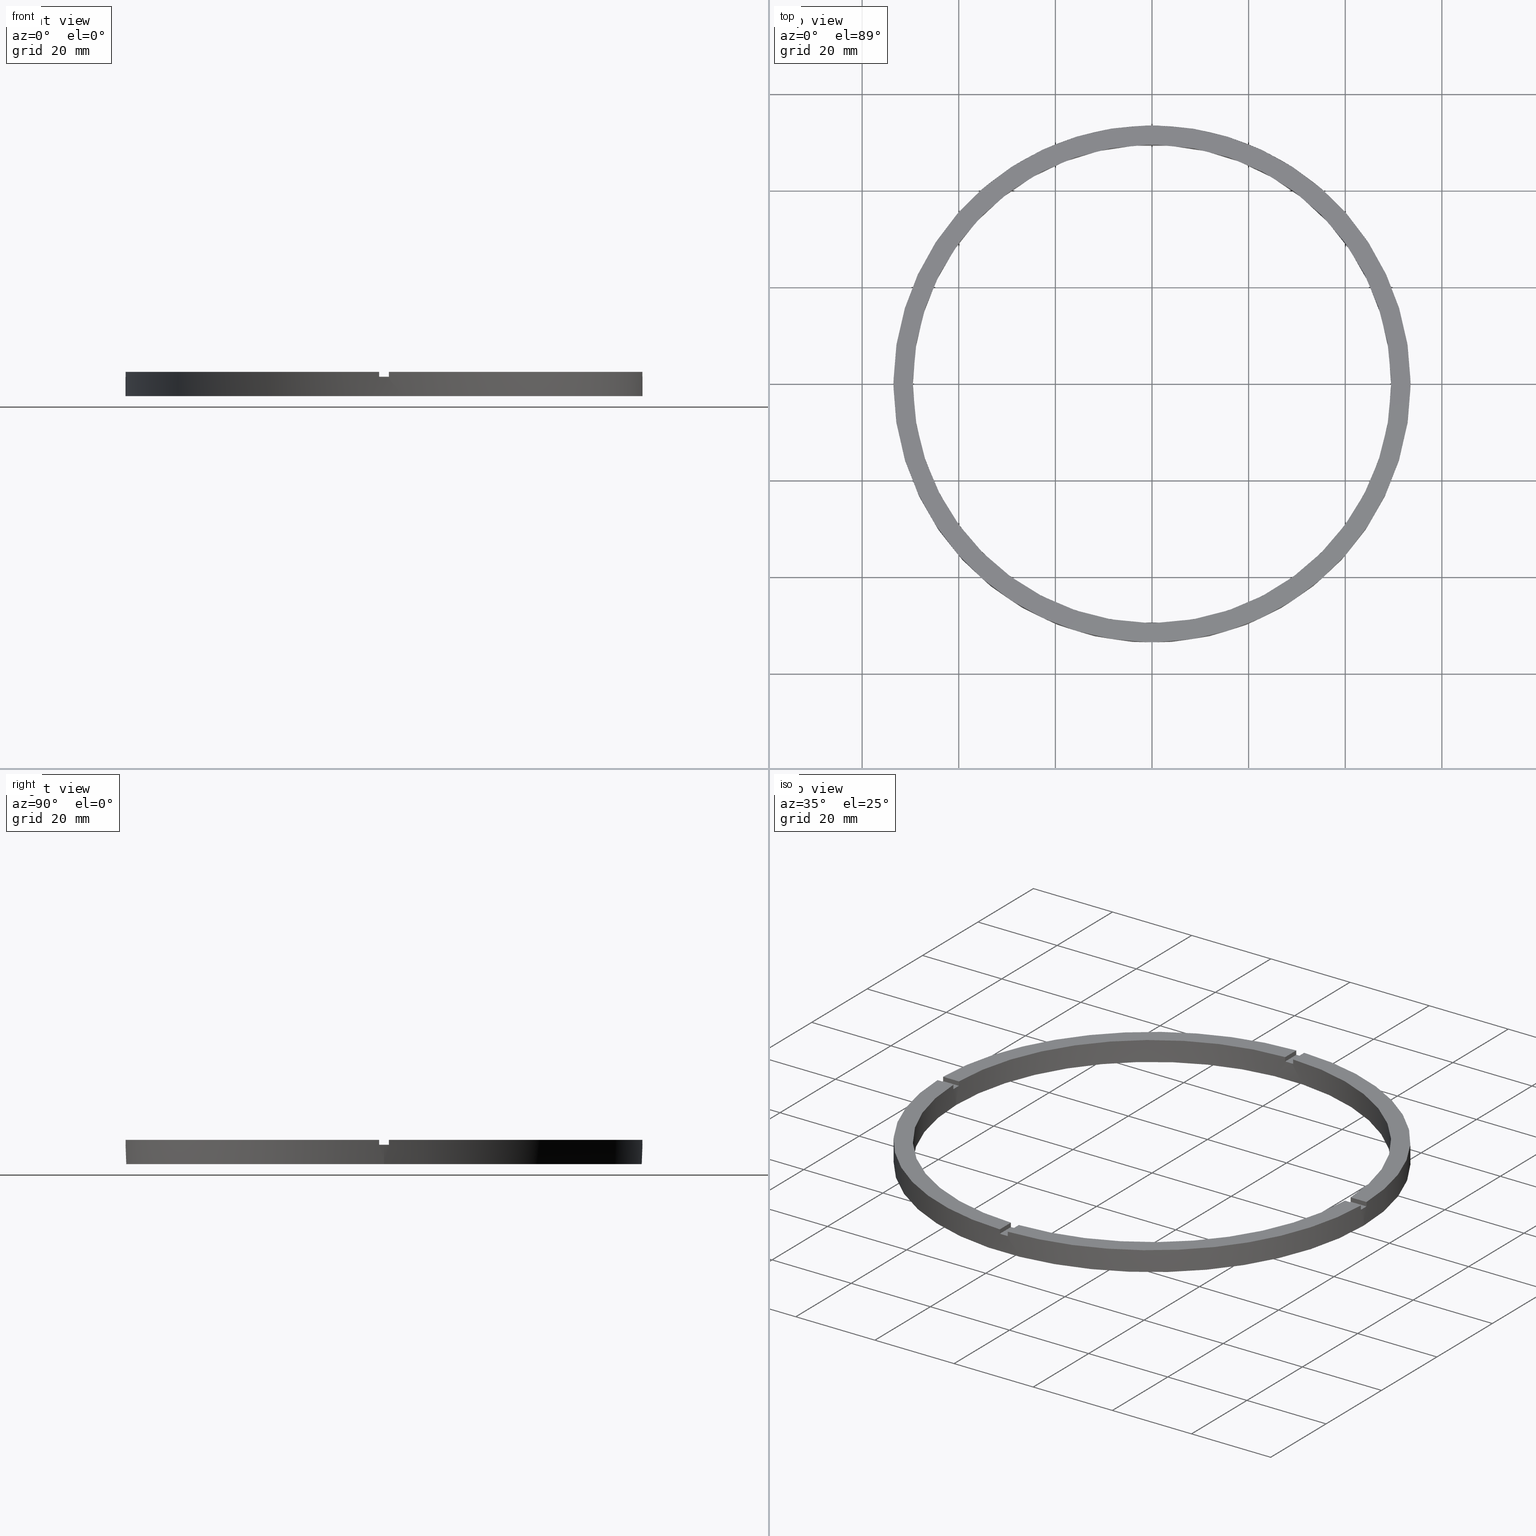
[diagram: canonical four-view strip — front | top / right | iso, engineering-drawing reading convention]
A machine part, canonical four-view strip (front | top / right | iso — engineering-drawing reading convention). The complete STEP part file that produces these views, byte-faithful:
ISO-10303-21;
HEADER;
FILE_DESCRIPTION (( 'STEP AP203' ),
    '1' );
FILE_NAME ('514219.step',
    '2024-12-26T02:49:17',
    ( 'MSI' ),
    ( '' ),
    'SwSTEP 2.0',
    'SolidWorks 2020',
    '' );
FILE_SCHEMA (( 'CONFIG_CONTROL_DESIGN' ));
ENDSEC;

DATA;
#1 = CARTESIAN_POINT ( 'NONE',  ( 0.000000000000000000, 0.000000000000000000, 4.000000000000000000 ) ) ;
#2 = CARTESIAN_POINT ( 'NONE',  ( 0.000000000000000000, 0.000000000000000000, 5.000000000000000000 ) ) ;
#3 = DIRECTION ( 'NONE',  ( 1.000000000000000000, 0.000000000000000000, -0.000000000000000000 ) ) ;
#4 = DATE_TIME_ROLE ( 'classification_date' ) ;
#5 = CARTESIAN_POINT ( 'NONE',  ( 0.000000000000000000, 0.000000000000000000, 4.000000000000000000 ) ) ;
#6 = EDGE_CURVE ( 'NONE', #144, #432, #218, .T. ) ;
#7 = DIRECTION ( 'NONE',  ( -1.000000000000000000, 0.000000000000000000, 0.000000000000000000 ) ) ;
#8 = ADVANCED_FACE ( 'NONE', ( #739 ), #473, .T. ) ;
#9 = DIRECTION ( 'NONE',  ( -6.505213034913025371E-17, 1.000000000000000000, 0.000000000000000000 ) ) ;
#10 = DIRECTION ( 'NONE',  ( 1.000000000000000000, 0.000000000000000000, 0.000000000000000000 ) ) ;
#11 = EDGE_CURVE ( 'NONE', #717, #719, #480, .T. ) ;
#12 = AXIS2_PLACEMENT_3D ( 'NONE', #607, #29, #527 ) ;
#13 = MANIFOLD_SOLID_BREP ( '�г�-����1', #207 ) ;
#14 = DIRECTION ( 'NONE',  ( -0.000000000000000000, -0.000000000000000000, -1.000000000000000000 ) ) ;
#15 = CARTESIAN_POINT ( 'NONE',  ( -49.48989795907849043, 0.9999999999999681366, 5.000000000000000000 ) ) ;
#16 = EDGE_CURVE ( 'NONE', #222, #717, #733, .T. ) ;
#17 = CARTESIAN_POINT ( 'NONE',  ( -1.000000000000157208, -43.50000000000017764, 5.000000000000000000 ) ) ;
#18 = AXIS2_PLACEMENT_3D ( 'NONE', #1, #622, #81 ) ;
#19 = DIRECTION ( 'NONE',  ( 1.000000000000000000, 0.000000000000000000, -0.000000000000000000 ) ) ;
#20 = CARTESIAN_POINT ( 'NONE',  ( 0.000000000000000000, 0.000000000000000000, 4.000000000000000000 ) ) ;
#21 = EDGE_CURVE ( 'NONE', #445, #433, #216, .T. ) ;
#22 = CARTESIAN_POINT ( 'NONE',  ( -53.49065338916696533, -1.000000000000032641, 5.000000000000000000 ) ) ;
#23 = PERSON_AND_ORGANIZATION_ROLE ( 'creator' ) ;
#24 = DIRECTION ( 'NONE',  ( -1.000000000000000000, 0.000000000000000000, 0.000000000000000000 ) ) ;
#25 = AXIS2_PLACEMENT_3D ( 'NONE', #409, #330, #277 ) ;
#26 = CARTESIAN_POINT ( 'NONE',  ( 0.9999999999999726885, 49.48989795907849043, 4.000000000000000000 ) ) ;
#27 = DIRECTION ( 'NONE',  ( 0.000000000000000000, 0.000000000000000000, 1.000000000000000000 ) ) ;
#28 = EDGE_CURVE ( 'NONE', #717, #433, #742, .T. ) ;
#29 = DIRECTION ( 'NONE',  ( 0.000000000000000000, 0.000000000000000000, 1.000000000000000000 ) ) ;
#30 = LINE ( 'NONE', #563, #41 ) ;
#31 = CIRCLE ( 'NONE', #758, 53.50000000000000000 ) ;
#32 = PERSON_AND_ORGANIZATION ( #479, #288 ) ;
#33 = EDGE_CURVE ( 'NONE', #704, #215, #486, .T. ) ;
#34 = VECTOR ( 'NONE', #514, 1000.000000000000000 ) ;
#35 = APPROVAL_PERSON_ORGANIZATION ( #42, #684, #214 ) ;
#36 = DIRECTION ( 'NONE',  ( 0.000000000000000000, 0.000000000000000000, 1.000000000000000000 ) ) ;
#37 = DIRECTION ( 'NONE',  ( 0.000000000000000000, 0.000000000000000000, 1.000000000000000000 ) ) ;
#38 = ADVANCED_FACE ( 'NONE', ( #564 ), #139, .T. ) ;
#39 = CC_DESIGN_APPROVAL ( #443, ( #769 ) ) ;
#40 = CARTESIAN_POINT ( 'NONE',  ( 0.9999999999999726885, 49.48989795907849043, 5.000000000000000000 ) ) ;
#41 = VECTOR ( 'NONE', #606, 1000.000000000000000 ) ;
#42 = PERSON_AND_ORGANIZATION ( #479, #288 ) ;
#43 = CARTESIAN_POINT ( 'NONE',  ( 0.9999999999999726885, 53.49065338916696533, 5.000000000000000000 ) ) ;
#44 = CALENDAR_DATE ( 2024, 26, 12 ) ;
#45 = PLANE ( 'NONE',  #355 ) ;
#46 = LINE ( 'NONE', #116, #34 ) ;
#47 = EDGE_CURVE ( 'NONE', #689, #229, #46, .T. ) ;
#48 = DIRECTION ( 'NONE',  ( 0.000000000000000000, 0.000000000000000000, 1.000000000000000000 ) ) ;
#49 = LINE ( 'NONE', #17, #302 ) ;
#50 = AXIS2_PLACEMENT_3D ( 'NONE', #746, #48, #282 ) ;
#51 = CARTESIAN_POINT ( 'NONE',  ( 0.9999999999999726885, 43.50000000000000000, 5.000000000000000000 ) ) ;
#52 = CARTESIAN_POINT ( 'NONE',  ( 43.49999999999999289, 0.9999999999998447908, 4.000000000000000000 ) ) ;
#53 = LINE ( 'NONE', #446, #569 ) ;
#54 = PLANE ( 'NONE',  #703 ) ;
#55 = FACE_OUTER_BOUND ( 'NONE', #725, .T. ) ;
#56 = EDGE_CURVE ( 'NONE', #445, #704, #573, .T. ) ;
#57 = CIRCLE ( 'NONE', #98, 53.50000000000000000 ) ;
#58 = EDGE_CURVE ( 'NONE', #689, #492, #31, .T. ) ;
#59 = CARTESIAN_POINT ( 'NONE',  ( 0.000000000000000000, 0.000000000000000000, 5.000000000000000000 ) ) ;
#60 = CARTESIAN_POINT ( 'NONE',  ( 0.000000000000000000, 0.000000000000000000, 4.000000000000000000 ) ) ;
#61 = VECTOR ( 'NONE', #246, 1000.000000000000000 ) ;
#62 = CC_DESIGN_SECURITY_CLASSIFICATION ( #110, ( #769 ) ) ;
#63 = DIRECTION ( 'NONE',  ( -0.000000000000000000, -1.000000000000000000, -0.000000000000000000 ) ) ;
#64 = EDGE_CURVE ( 'NONE', #687, #200, #30, .T. ) ;
#65 = APPROVAL ( #295, 'δָ��' ) ;
#66 = FACE_OUTER_BOUND ( 'NONE', #185, .T. ) ;
#67 = ADVANCED_FACE ( 'NONE', ( #554 ), #483, .F. ) ;
#68 = CYLINDRICAL_SURFACE ( 'NONE', #701, 49.50000000000000711 ) ;
#69 = DIRECTION ( 'NONE',  ( 1.000000000000000000, 6.505213034913025371E-17, 0.000000000000000000 ) ) ;
#70 = CIRCLE ( 'NONE', #267, 53.50000000000000000 ) ;
#71 = CARTESIAN_POINT ( 'NONE',  ( 0.000000000000000000, 0.000000000000000000, 5.000000000000000000 ) ) ;
#72 = EDGE_CURVE ( 'NONE', #200, #168, #571, .T. ) ;
#73 = AXIS2_PLACEMENT_3D ( 'NONE', #617, #611, #84 ) ;
#74 = CC_DESIGN_PERSON_AND_ORGANIZATION_ASSIGNMENT ( #465, #636, ( #769 ) ) ;
#75 = LINE ( 'NONE', #86, #76 ) ;
#76 = VECTOR ( 'NONE', #272, 1000.000000000000000 ) ;
#77 = EDGE_CURVE ( 'NONE', #433, #215, #49, .T. ) ;
#78 = DIRECTION ( 'NONE',  ( -0.000000000000000000, -0.000000000000000000, -1.000000000000000000 ) ) ;
#79 = EDGE_CURVE ( 'NONE', #472, #189, #306, .T. ) ;
#80 = AXIS2_PLACEMENT_3D ( 'NONE', #341, #714, #147 ) ;
#81 = DIRECTION ( 'NONE',  ( 1.000000000000000000, 0.000000000000000000, -0.000000000000000000 ) ) ;
#82 = EDGE_CURVE ( 'NONE', #638, #692, #561, .T. ) ;
#83 = EDGE_CURVE ( 'NONE', #432, #614, #292, .T. ) ;
#84 = DIRECTION ( 'NONE',  ( 1.000000000000000000, 0.000000000000000000, 0.000000000000000000 ) ) ;
#85 = CC_DESIGN_APPROVAL ( #65, ( #110 ) ) ;
#86 = CARTESIAN_POINT ( 'NONE',  ( 43.49999999999999289, -1.000000000000155209, 5.000000000000000000 ) ) ;
#87 = CARTESIAN_POINT ( 'NONE',  ( 53.50000000000000000, 6.551860375438339893E-15, 0.000000000000000000 ) ) ;
#88 = EDGE_LOOP ( 'NONE', ( #456, #424, #451, #426, #702, #615, #163, #626, #709, #210, #103, #705 ) ) ;
#89 = DIRECTION ( 'NONE',  ( 1.000000000000000000, 0.000000000000000000, 0.000000000000000000 ) ) ;
#90 = DIRECTION ( 'NONE',  ( 0.000000000000000000, 0.000000000000000000, 1.000000000000000000 ) ) ;
#91 = ORIENTED_EDGE ( 'NONE', *, *, #79, .T. ) ;
#92 = ORIENTED_EDGE ( 'NONE', *, *, #532, .F. ) ;
#93 = ORIENTED_EDGE ( 'NONE', *, *, #237, .T. ) ;
#94 = CARTESIAN_POINT ( 'NONE',  ( 0.9999999999999726885, 53.49065338916696533, 5.000000000000000000 ) ) ;
#95 = EDGE_CURVE ( 'NONE', #438, #100, #293, .T. ) ;
#96 = ORIENTED_EDGE ( 'NONE', *, *, #340, .T. ) ;
#97 = DESIGN_CONTEXT ( 'detailed design', #619, 'design' ) ;
#98 = AXIS2_PLACEMENT_3D ( 'NONE', #431, #653, #258 ) ;
#99 = ORIENTED_EDGE ( 'NONE', *, *, #353, .T. ) ;
#100 = VERTEX_POINT ( 'NONE', #123 ) ;
#101 = DIRECTION ( 'NONE',  ( 0.000000000000000000, 0.000000000000000000, 1.000000000000000000 ) ) ;
#102 = EDGE_CURVE ( 'NONE', #699, #442, #296, .T. ) ;
#103 = ORIENTED_EDGE ( 'NONE', *, *, #593, .T. ) ;
#104 = ORIENTED_EDGE ( 'NONE', *, *, #695, .F. ) ;
#105 = FACE_OUTER_BOUND ( 'NONE', #191, .T. ) ;
#106 = ORIENTED_EDGE ( 'NONE', *, *, #525, .F. ) ;
#107 = DIRECTION ( 'NONE',  ( -0.000000000000000000, 0.000000000000000000, 1.000000000000000000 ) ) ;
#108 = VECTOR ( 'NONE', #643, 1000.000000000000000 ) ;
#109 = EDGE_LOOP ( 'NONE', ( #187, #106, #751, #150 ) ) ;
#110 = SECURITY_CLASSIFICATION ( '', '', #766 ) ;
#111 = LINE ( 'NONE', #252, #382 ) ;
#112 = ORIENTED_EDGE ( 'NONE', *, *, #659, .F. ) ;
#113 = AXIS2_PLACEMENT_3D ( 'NONE', #513, #660, #510 ) ;
#114 = LINE ( 'NONE', #434, #124 ) ;
#115 = CIRCLE ( 'NONE', #334, 49.50000000000000711 ) ;
#116 = CARTESIAN_POINT ( 'NONE',  ( 53.49065338916697243, 0.9999999999998454570, 5.000000000000000000 ) ) ;
#117 = VECTOR ( 'NONE', #180, 1000.000000000000000 ) ;
#118 = AXIS2_PLACEMENT_3D ( 'NONE', #519, #265, #374 ) ;
#119 = CIRCLE ( 'NONE', #538, 49.50000000000000711 ) ;
#120 = EDGE_CURVE ( 'NONE', #189, #200, #567, .T. ) ;
#121 = CIRCLE ( 'NONE', #511, 53.50000000000000000 ) ;
#122 = LINE ( 'NONE', #731, #396 ) ;
#123 = CARTESIAN_POINT ( 'NONE',  ( 0.9999999999998441247, -53.49065338916697243, 4.000000000000000000 ) ) ;
#124 = VECTOR ( 'NONE', #14, 1000.000000000000000 ) ;
#125 = CARTESIAN_POINT ( 'NONE',  ( -43.50000000000018474, 0.9999999999999694689, 4.000000000000000000 ) ) ;
#126 = FACE_OUTER_BOUND ( 'NONE', #641, .T. ) ;
#127 = FACE_OUTER_BOUND ( 'NONE', #743, .T. ) ;
#128 = FACE_BOUND ( 'NONE', #361, .T. ) ;
#129 = DATE_TIME_ROLE ( 'creation_date' ) ;
#130 = FACE_OUTER_BOUND ( 'NONE', #172, .T. ) ;
#131 = EDGE_CURVE ( 'NONE', #189, #692, #53, .T. ) ;
#132 = VECTOR ( 'NONE', #233, 1000.000000000000000 ) ;
#133 = CYLINDRICAL_SURFACE ( 'NONE', #268, 49.50000000000000711 ) ;
#134 = CARTESIAN_POINT ( 'NONE',  ( 49.48989795907849043, -1.000000000000154765, 5.000000000000000000 ) ) ;
#135 = DIRECTION ( 'NONE',  ( 1.000000000000000000, 0.000000000000000000, 0.000000000000000000 ) ) ;
#136 = CARTESIAN_POINT ( 'NONE',  ( 43.49999999999999289, 0.9999999999998447908, 5.000000000000000000 ) ) ;
#137 = PRODUCT_DEFINITION ( 'δ֪', '', #769, #97 ) ;
#138 = VECTOR ( 'NONE', #429, 1000.000000000000000 ) ;
#139 = PLANE ( 'NONE',  #761 ) ;
#140 = VECTOR ( 'NONE', #663, 1000.000000000000000 ) ;
#141 = EDGE_CURVE ( 'NONE', #704, #100, #305, .T. ) ;
#142 = AXIS2_PLACEMENT_3D ( 'NONE', #407, #9, #326 ) ;
#143 =( GEOMETRIC_REPRESENTATION_CONTEXT ( 3 ) GLOBAL_UNCERTAINTY_ASSIGNED_CONTEXT ( ( #548 ) ) GLOBAL_UNIT_ASSIGNED_CONTEXT ( ( #312, #366, #560 ) ) REPRESENTATION_CONTEXT ( 'NONE', 'WORKASPACE' ) );
#144 = VERTEX_POINT ( 'NONE', #261 ) ;
#145 = LINE ( 'NONE', #43, #138 ) ;
#146 = ORIENTED_EDGE ( 'NONE', *, *, #558, .F. ) ;
#147 = DIRECTION ( 'NONE',  ( 1.000000000000000000, 0.000000000000000000, 0.000000000000000000 ) ) ;
#148 = CIRCLE ( 'NONE', #406, 49.50000000000000711 ) ;
#149 = DIRECTION ( 'NONE',  ( 0.000000000000000000, 0.000000000000000000, 1.000000000000000000 ) ) ;
#150 = ORIENTED_EDGE ( 'NONE', *, *, #364, .T. ) ;
#151 = ORIENTED_EDGE ( 'NONE', *, *, #141, .T. ) ;
#152 = ORIENTED_EDGE ( 'NONE', *, *, #33, .F. ) ;
#153 = CARTESIAN_POINT ( 'NONE',  ( 49.48989795907849043, 0.9999999999998452349, 4.000000000000000000 ) ) ;
#154 = ORIENTED_EDGE ( 'NONE', *, *, #16, .F. ) ;
#155 = ORIENTED_EDGE ( 'NONE', *, *, #16, .T. ) ;
#156 = ORIENTED_EDGE ( 'NONE', *, *, #612, .T. ) ;
#157 = ORIENTED_EDGE ( 'NONE', *, *, #515, .F. ) ;
#158 = CARTESIAN_POINT ( 'NONE',  ( 0.9999999999998427924, -43.50000000000017764, 4.000000000000000000 ) ) ;
#159 = ORIENTED_EDGE ( 'NONE', *, *, #64, .T. ) ;
#160 = ORIENTED_EDGE ( 'NONE', *, *, #327, .F. ) ;
#161 = CC_DESIGN_DATE_AND_TIME_ASSIGNMENT ( #440, #4, ( #110 ) ) ;
#162 = DIRECTION ( 'NONE',  ( 0.000000000000000000, -0.000000000000000000, 1.000000000000000000 ) ) ;
#163 = ORIENTED_EDGE ( 'NONE', *, *, #131, .F. ) ;
#164 = ORIENTED_EDGE ( 'NONE', *, *, #79, .F. ) ;
#165 = ORIENTED_EDGE ( 'NONE', *, *, #33, .T. ) ;
#166 = ORIENTED_EDGE ( 'NONE', *, *, #242, .F. ) ;
#167 = ORIENTED_EDGE ( 'NONE', *, *, #593, .F. ) ;
#168 = VERTEX_POINT ( 'NONE', #365 ) ;
#169 = DIRECTION ( 'NONE',  ( -0.000000000000000000, 0.000000000000000000, 1.000000000000000000 ) ) ;
#170 = ORIENTED_EDGE ( 'NONE', *, *, #350, .F. ) ;
#171 = DIRECTION ( 'NONE',  ( -1.301042606982605074E-16, 1.000000000000000000, -0.000000000000000000 ) ) ;
#172 = EDGE_LOOP ( 'NONE', ( #729, #444, #352, #112 ) ) ;
#173 = EDGE_CURVE ( 'NONE', #687, #457, #570, .T. ) ;
#174 = CALENDAR_DATE ( 2024, 26, 12 ) ;
#175 = CARTESIAN_POINT ( 'NONE',  ( 0.000000000000000000, 0.000000000000000000, 0.000000000000000000 ) ) ;
#176 = EDGE_LOOP ( 'NONE', ( #416, #159, #718, #460 ) ) ;
#177 = EDGE_LOOP ( 'NONE', ( #151, #485, #723, #441 ) ) ;
#178 = VERTEX_POINT ( 'NONE', #698 ) ;
#179 = CALENDAR_DATE ( 2024, 26, 12 ) ;
#180 = DIRECTION ( 'NONE',  ( 0.000000000000000000, 0.000000000000000000, 1.000000000000000000 ) ) ;
#181 = ORIENTED_EDGE ( 'NONE', *, *, #77, .T. ) ;
#182 = ORIENTED_EDGE ( 'NONE', *, *, #237, .F. ) ;
#183 = EDGE_LOOP ( 'NONE', ( #164, #697, #610, #671 ) ) ;
#184 = CARTESIAN_POINT ( 'NONE',  ( 0.9999999999998436806, -49.48989795907849043, 5.000000000000000000 ) ) ;
#185 = EDGE_LOOP ( 'NONE', ( #157, #196, #422, #678, #679, #419, #165, #166, #481, #182, #363, #740 ) ) ;
#186 = DIRECTION ( 'NONE',  ( -1.000000000000000000, -6.505213034913025371E-17, -0.000000000000000000 ) ) ;
#187 = ORIENTED_EDGE ( 'NONE', *, *, #317, .F. ) ;
#188 = PRODUCT_RELATED_PRODUCT_CATEGORY ( 'detail', '', ( #768 ) ) ;
#189 = VERTEX_POINT ( 'NONE', #459 ) ;
#190 = ORIENTED_EDGE ( 'NONE', *, *, #102, .T. ) ;
#191 = EDGE_LOOP ( 'NONE', ( #190, #93, #377, #462, #716, #356 ) ) ;
#192 = EDGE_LOOP ( 'NONE', ( #634, #700, #346, #96 ) ) ;
#193 = LOCAL_TIME ( 10, 49, 17.00000000000000000, #494 ) ;
#194 = ORIENTED_EDGE ( 'NONE', *, *, #250, .T. ) ;
#195 = ORIENTED_EDGE ( 'NONE', *, *, #21, .F. ) ;
#196 = ORIENTED_EDGE ( 'NONE', *, *, #411, .F. ) ;
#197 = DIRECTION ( 'NONE',  ( 1.000000000000000000, 0.000000000000000000, 0.000000000000000000 ) ) ;
#198 = ORIENTED_EDGE ( 'NONE', *, *, #754, .F. ) ;
#199 = LOCAL_TIME ( 10, 49, 17.00000000000000000, #463 ) ;
#200 = VERTEX_POINT ( 'NONE', #15 ) ;
#201 = ORIENTED_EDGE ( 'NONE', *, *, #411, .T. ) ;
#202 = DATE_AND_TIME ( #724, #193 ) ;
#203 = ORIENTED_EDGE ( 'NONE', *, *, #710, .F. ) ;
#204 = ORIENTED_EDGE ( 'NONE', *, *, #58, .T. ) ;
#205 = COORDINATED_UNIVERSAL_TIME_OFFSET ( 8, 0, .AHEAD. ) ;
#206 = ORIENTED_EDGE ( 'NONE', *, *, #102, .F. ) ;
#207 = CLOSED_SHELL ( 'NONE', ( #618, #8, #38, #625, #779, #227, #501, #260, #269, #430, #535, #418, #343, #584, #398, #247, #67, #289, #657, #772, #491 ) ) ;
#208 = ORIENTED_EDGE ( 'NONE', *, *, #83, .T. ) ;
#209 = CARTESIAN_POINT ( 'NONE',  ( 53.49065338916697243, 0.9999999999998454570, 4.000000000000000000 ) ) ;
#210 = ORIENTED_EDGE ( 'NONE', *, *, #173, .T. ) ;
#211 = CARTESIAN_POINT ( 'NONE',  ( -1.000000000000157208, -43.50000000000017764, 4.000000000000000000 ) ) ;
#212 = ORIENTED_EDGE ( 'NONE', *, *, #317, .T. ) ;
#213 = CARTESIAN_POINT ( 'NONE',  ( -1.000000000000027311, 43.50000000000000000, 4.000000000000000000 ) ) ;
#214 = APPROVAL_ROLE ( '' ) ;
#215 = VERTEX_POINT ( 'NONE', #555 ) ;
#216 = LINE ( 'NONE', #262, #484 ) ;
#217 = VERTEX_POINT ( 'NONE', #667 ) ;
#218 = CIRCLE ( 'NONE', #304, 49.50000000000000711 ) ;
#219 = DIRECTION ( 'NONE',  ( 0.000000000000000000, 0.000000000000000000, 1.000000000000000000 ) ) ;
#220 = EDGE_LOOP ( 'NONE', ( #194, #435, #198, #455 ) ) ;
#221 = DATE_AND_TIME ( #44, #566 ) ;
#222 = VERTEX_POINT ( 'NONE', #22 ) ;
#223 = APPROVAL_DATE_TIME ( #202, #443 ) ;
#224 = CARTESIAN_POINT ( 'NONE',  ( 0.9999999999998441247, -53.49065338916697243, 5.000000000000000000 ) ) ;
#225 = DIRECTION ( 'NONE',  ( 0.000000000000000000, 0.000000000000000000, -1.000000000000000000 ) ) ;
#226 = LOCAL_TIME ( 10, 49, 17.00000000000000000, #230 ) ;
#227 = ADVANCED_FACE ( 'NONE', ( #55 ), #372, .T. ) ;
#228 = CARTESIAN_POINT ( 'NONE',  ( -49.48989795907849043, -1.000000000000031974, 5.000000000000000000 ) ) ;
#229 = VERTEX_POINT ( 'NONE', #209 ) ;
#230 = COORDINATED_UNIVERSAL_TIME_OFFSET ( 8, 0, .AHEAD. ) ;
#231 = AXIS2_PLACEMENT_3D ( 'NONE', #175, #591, #3 ) ;
#232 = SHAPE_DEFINITION_REPRESENTATION ( #328, #536 ) ;
#233 = DIRECTION ( 'NONE',  ( -1.000000000000000000, -1.951563910473907735E-16, 0.000000000000000000 ) ) ;
#234 = CARTESIAN_POINT ( 'NONE',  ( 0.9999999999998436806, -49.48989795907849043, 5.000000000000000000 ) ) ;
#235 = DIRECTION ( 'NONE',  ( -0.000000000000000000, -0.000000000000000000, -1.000000000000000000 ) ) ;
#236 = AXIS2_PLACEMENT_3D ( 'NONE', #371, #502, #777 ) ;
#237 = EDGE_CURVE ( 'NONE', #442, #688, #57, .T. ) ;
#238 = DIRECTION ( 'NONE',  ( 1.000000000000000000, 0.000000000000000000, -0.000000000000000000 ) ) ;
#239 = DIRECTION ( 'NONE',  ( 1.000000000000000000, 0.000000000000000000, 0.000000000000000000 ) ) ;
#240 = CARTESIAN_POINT ( 'NONE',  ( 0.000000000000000000, 0.000000000000000000, 5.000000000000000000 ) ) ;
#241 = DIRECTION ( 'NONE',  ( 0.000000000000000000, 1.000000000000000000, 0.000000000000000000 ) ) ;
#242 = EDGE_CURVE ( 'NONE', #222, #215, #310, .T. ) ;
#243 = DIRECTION ( 'NONE',  ( 1.000000000000000000, 0.000000000000000000, 0.000000000000000000 ) ) ;
#244 = CARTESIAN_POINT ( 'NONE',  ( 0.000000000000000000, 0.000000000000000000, 4.000000000000000000 ) ) ;
#245 = DIRECTION ( 'NONE',  ( -1.000000000000000000, 0.000000000000000000, 0.000000000000000000 ) ) ;
#246 = DIRECTION ( 'NONE',  ( 1.000000000000000000, 6.505213034913025371E-17, 0.000000000000000000 ) ) ;
#247 = ADVANCED_FACE ( 'NONE', ( #574 ), #338, .F. ) ;
#248 = EDGE_CURVE ( 'NONE', #683, #370, #553, .T. ) ;
#249 = CARTESIAN_POINT ( 'NONE',  ( -53.49065338916696533, -1.000000000000032641, 4.000000000000000000 ) ) ;
#250 = EDGE_CURVE ( 'NONE', #438, #735, #592, .T. ) ;
#251 = DIRECTION ( 'NONE',  ( -1.000000000000000000, 0.000000000000000000, 0.000000000000000000 ) ) ;
#252 = CARTESIAN_POINT ( 'NONE',  ( 53.50000000000000000, 6.551860375438339893E-15, 5.000000000000000000 ) ) ;
#253 = DIRECTION ( 'NONE',  ( 0.000000000000000000, 0.000000000000000000, 1.000000000000000000 ) ) ;
#254 = DIRECTION ( 'NONE',  ( -0.000000000000000000, -0.000000000000000000, -1.000000000000000000 ) ) ;
#255 = EDGE_CURVE ( 'NONE', #178, #487, #70, .T. ) ;
#256 = CARTESIAN_POINT ( 'NONE',  ( 0.000000000000000000, 0.000000000000000000, 5.000000000000000000 ) ) ;
#257 = PLANE ( 'NONE',  #760 ) ;
#258 = DIRECTION ( 'NONE',  ( 1.000000000000000000, 0.000000000000000000, 0.000000000000000000 ) ) ;
#259 = DIRECTION ( 'NONE',  ( 1.000000000000000000, 0.000000000000000000, 0.000000000000000000 ) ) ;
#260 = ADVANCED_FACE ( 'NONE', ( #66 ), #329, .T. ) ;
#261 = CARTESIAN_POINT ( 'NONE',  ( 49.48989795907849043, -1.000000000000154765, 4.000000000000000000 ) ) ;
#262 = CARTESIAN_POINT ( 'NONE',  ( -1.000000000000156319, -49.48989795907849043, 5.000000000000000000 ) ) ;
#263 = DIRECTION ( 'NONE',  ( -0.000000000000000000, -0.000000000000000000, -1.000000000000000000 ) ) ;
#264 = DIRECTION ( 'NONE',  ( 1.301042606982605074E-16, -1.000000000000000000, 0.000000000000000000 ) ) ;
#265 = DIRECTION ( 'NONE',  ( 0.000000000000000000, 0.000000000000000000, 1.000000000000000000 ) ) ;
#266 = PLANE ( 'NONE',  #18 ) ;
#267 = AXIS2_PLACEMENT_3D ( 'NONE', #594, #37, #197 ) ;
#268 = AXIS2_PLACEMENT_3D ( 'NONE', #333, #738, #533 ) ;
#269 = ADVANCED_FACE ( 'NONE', ( #578 ), #68, .F. ) ;
#270 = DIRECTION ( 'NONE',  ( 1.000000000000000000, 1.951563910473907735E-16, 0.000000000000000000 ) ) ;
#271 = CARTESIAN_POINT ( 'NONE',  ( -49.48989795907849043, 0.9999999999999681366, 4.000000000000000000 ) ) ;
#272 = DIRECTION ( 'NONE',  ( 1.000000000000000000, 6.505213034913025371E-17, 0.000000000000000000 ) ) ;
#273 = CARTESIAN_POINT ( 'NONE',  ( 49.48989795907849043, 0.9999999999998452349, 5.000000000000000000 ) ) ;
#274 = DIRECTION ( 'NONE',  ( 1.000000000000000000, 0.000000000000000000, 0.000000000000000000 ) ) ;
#275 = CARTESIAN_POINT ( 'NONE',  ( 53.49065338916696533, -1.000000000000154543, 4.000000000000000000 ) ) ;
#276 = DIRECTION ( 'NONE',  ( 1.000000000000000000, 1.301042606982605074E-16, 0.000000000000000000 ) ) ;
#277 = DIRECTION ( 'NONE',  ( 1.000000000000000000, 0.000000000000000000, 0.000000000000000000 ) ) ;
#278 = CARTESIAN_POINT ( 'NONE',  ( 49.48989795907849043, -1.000000000000154765, 5.000000000000000000 ) ) ;
#279 = DIRECTION ( 'NONE',  ( -0.000000000000000000, -0.000000000000000000, -1.000000000000000000 ) ) ;
#280 = CC_DESIGN_PERSON_AND_ORGANIZATION_ASSIGNMENT ( #694, #23, ( #137 ) ) ;
#281 = CARTESIAN_POINT ( 'NONE',  ( 0.000000000000000000, 0.000000000000000000, 4.000000000000000000 ) ) ;
#282 = DIRECTION ( 'NONE',  ( 1.000000000000000000, 0.000000000000000000, 0.000000000000000000 ) ) ;
#283 = EDGE_CURVE ( 'NONE', #217, #229, #325, .T. ) ;
#284 = CARTESIAN_POINT ( 'NONE',  ( -43.50000000000018474, 0.9999999999999694689, 4.000000000000000000 ) ) ;
#285 = AXIS2_PLACEMENT_3D ( 'NONE', #556, #656, #225 ) ;
#286 = PERSON_AND_ORGANIZATION_ROLE ( 'creator' ) ;
#287 = VECTOR ( 'NONE', #762, 1000.000000000000000 ) ;
#288 = ORGANIZATION ( 'δָ��', 'δָ��', '' ) ;
#289 = ADVANCED_FACE ( 'NONE', ( #595 ), #45, .T. ) ;
#290 = DIRECTION ( 'NONE',  ( 1.000000000000000000, 0.000000000000000000, -0.000000000000000000 ) ) ;
#291 = EDGE_CURVE ( 'NONE', #442, #178, #324, .T. ) ;
#292 = LINE ( 'NONE', #436, #562 ) ;
#293 = LINE ( 'NONE', #224, #299 ) ;
#294 = EDGE_CURVE ( 'NONE', #229, #450, #331, .T. ) ;
#295 = APPROVAL_STATUS ( 'not_yet_approved' ) ;
#296 = CIRCLE ( 'NONE', #478, 53.50000000000000000 ) ;
#297 = DIRECTION ( 'NONE',  ( 0.000000000000000000, 1.000000000000000000, 0.000000000000000000 ) ) ;
#298 = DIRECTION ( 'NONE',  ( -1.000000000000000000, -1.301042606982605074E-16, 0.000000000000000000 ) ) ;
#299 = VECTOR ( 'NONE', #759, 1000.000000000000000 ) ;
#300 = COORDINATED_UNIVERSAL_TIME_OFFSET ( 8, 0, .AHEAD. ) ;
#301 = AXIS2_PLACEMENT_3D ( 'NONE', #498, #581, #629 ) ;
#302 = VECTOR ( 'NONE', #264, 1000.000000000000000 ) ;
#303 = VECTOR ( 'NONE', #380, 1000.000000000000000 ) ;
#304 = AXIS2_PLACEMENT_3D ( 'NONE', #20, #475, #764 ) ;
#305 = CIRCLE ( 'NONE', #775, 53.50000000000000000 ) ;
#306 = LINE ( 'NONE', #662, #308 ) ;
#307 = CARTESIAN_POINT ( 'NONE',  ( 0.000000000000000000, 0.000000000000000000, 4.000000000000000000 ) ) ;
#308 = VECTOR ( 'NONE', #63, 1000.000000000000000 ) ;
#309 = CC_DESIGN_PERSON_AND_ORGANIZATION_ASSIGNMENT ( #750, #509, ( #110 ) ) ;
#310 = CIRCLE ( 'NONE', #403, 53.50000000000000000 ) ;
#311 = CARTESIAN_POINT ( 'NONE',  ( 0.000000000000000000, 0.000000000000000000, 5.000000000000000000 ) ) ;
#312 =( LENGTH_UNIT ( ) NAMED_UNIT ( * ) SI_UNIT ( .MILLI., .METRE. ) );
#313 = CIRCLE ( 'NONE', #80, 49.50000000000000711 ) ;
#314 = PLANE ( 'NONE',  #236 ) ;
#315 = LINE ( 'NONE', #776, #598 ) ;
#316 = CARTESIAN_POINT ( 'NONE',  ( 0.000000000000000000, 0.000000000000000000, 5.000000000000000000 ) ) ;
#317 = EDGE_CURVE ( 'NONE', #474, #370, #75, .T. ) ;
#318 = APPROVAL_ROLE ( '' ) ;
#319 = DIRECTION ( 'NONE',  ( 1.301042606982605074E-16, -1.000000000000000000, 0.000000000000000000 ) ) ;
#320 = EDGE_CURVE ( 'NONE', #614, #616, #313, .T. ) ;
#321 = VECTOR ( 'NONE', #413, 1000.000000000000000 ) ;
#322 = APPLICATION_PROTOCOL_DEFINITION ( 'international standard', 'config_control_design', 1994, #387 ) ;
#323 = AXIS2_PLACEMENT_3D ( 'NONE', #158, #276, #402 ) ;
#324 = LINE ( 'NONE', #590, #588 ) ;
#325 = CIRCLE ( 'NONE', #604, 53.50000000000000000 ) ;
#326 = DIRECTION ( 'NONE',  ( -1.000000000000000000, -6.505213034913025371E-17, 0.000000000000000000 ) ) ;
#327 = EDGE_CURVE ( 'NONE', #144, #683, #576, .T. ) ;
#328 = PRODUCT_DEFINITION_SHAPE ( 'NONE', 'NONE',  #137 ) ;
#329 = CYLINDRICAL_SURFACE ( 'NONE', #645, 53.50000000000000000 ) ;
#330 = DIRECTION ( 'NONE',  ( 0.000000000000000000, 0.000000000000000000, 1.000000000000000000 ) ) ;
#331 = LINE ( 'NONE', #52, #597 ) ;
#332 = CARTESIAN_POINT ( 'NONE',  ( -1.000000000000156319, -49.48989795907849043, 4.000000000000000000 ) ) ;
#333 = CARTESIAN_POINT ( 'NONE',  ( 0.000000000000000000, 0.000000000000000000, 5.000000000000000000 ) ) ;
#334 = AXIS2_PLACEMENT_3D ( 'NONE', #60, #162, #621 ) ;
#335 = DIRECTION ( 'NONE',  ( -0.000000000000000000, -0.000000000000000000, -1.000000000000000000 ) ) ;
#336 = CARTESIAN_POINT ( 'NONE',  ( -1.000000000000155875, -53.49065338916696533, 4.000000000000000000 ) ) ;
#337 = CARTESIAN_POINT ( 'NONE',  ( -53.49065338916696533, 0.9999999999999674705, 5.000000000000000000 ) ) ;
#338 = PLANE ( 'NONE',  #142 ) ;
#339 = DIRECTION ( 'NONE',  ( -1.951563910473907735E-16, 1.000000000000000000, 0.000000000000000000 ) ) ;
#340 = EDGE_CURVE ( 'NONE', #368, #466, #315, .T. ) ;
#341 = CARTESIAN_POINT ( 'NONE',  ( 0.000000000000000000, 0.000000000000000000, 0.000000000000000000 ) ) ;
#342 = CARTESIAN_POINT ( 'NONE',  ( 0.000000000000000000, 0.000000000000000000, 4.000000000000000000 ) ) ;
#343 = ADVANCED_FACE ( 'NONE', ( #376 ), #534, .F. ) ;
#344 = CC_DESIGN_APPROVAL ( #684, ( #137 ) ) ;
#345 = DIRECTION ( 'NONE',  ( 1.000000000000000000, 0.000000000000000000, -0.000000000000000000 ) ) ;
#346 = ORIENTED_EDGE ( 'NONE', *, *, #499, .F. ) ;
#347 = DIRECTION ( 'NONE',  ( 1.000000000000000000, 0.000000000000000000, -0.000000000000000000 ) ) ;
#348 = EDGE_LOOP ( 'NONE', ( #201, #417, #682, #421, #467, #423 ) ) ;
#349 = CARTESIAN_POINT ( 'NONE',  ( -43.50000000000018474, 0.9999999999999694689, 5.000000000000000000 ) ) ;
#350 = EDGE_CURVE ( 'NONE', #144, #474, #652, .T. ) ;
#351 = ORIENTED_EDGE ( 'NONE', *, *, #582, .F. ) ;
#352 = ORIENTED_EDGE ( 'NONE', *, *, #715, .T. ) ;
#353 = EDGE_CURVE ( 'NONE', #472, #638, #390, .T. ) ;
#354 = ORIENTED_EDGE ( 'NONE', *, *, #6, .T. ) ;
#355 = AXIS2_PLACEMENT_3D ( 'NONE', #545, #90, #290 ) ;
#356 = ORIENTED_EDGE ( 'NONE', *, *, #780, .T. ) ;
#357 = DIRECTION ( 'NONE',  ( 6.505213034913025371E-17, -1.000000000000000000, 0.000000000000000000 ) ) ;
#358 = AXIS2_PLACEMENT_3D ( 'NONE', #211, #298, #757 ) ;
#359 = PLANE ( 'NONE',  #506 ) ;
#360 = ORIENTED_EDGE ( 'NONE', *, *, #11, .F. ) ;
#361 = EDGE_LOOP ( 'NONE', ( #156, #691 ) ) ;
#362 = EDGE_CURVE ( 'NONE', #699, #168, #391, .T. ) ;
#363 = ORIENTED_EDGE ( 'NONE', *, *, #291, .T. ) ;
#364 = EDGE_CURVE ( 'NONE', #438, #370, #389, .T. ) ;
#365 = CARTESIAN_POINT ( 'NONE',  ( -53.49065338916696533, 0.9999999999999674705, 5.000000000000000000 ) ) ;
#366 =( NAMED_UNIT ( * ) PLANE_ANGLE_UNIT ( ) SI_UNIT ( $, .RADIAN. ) );
#367 = ORIENTED_EDGE ( 'NONE', *, *, #525, .T. ) ;
#368 = VERTEX_POINT ( 'NONE', #26 ) ;
#369 = ORIENTED_EDGE ( 'NONE', *, *, #28, .T. ) ;
#370 = VERTEX_POINT ( 'NONE', #770 ) ;
#371 = CARTESIAN_POINT ( 'NONE',  ( 0.000000000000000000, 0.000000000000000000, 4.000000000000000000 ) ) ;
#372 = PLANE ( 'NONE',  #395 ) ;
#373 = EDGE_LOOP ( 'NONE', ( #354, #208, #381, #167, #696, #360, #369, #195, #632, #104, #367, #170 ) ) ;
#374 = DIRECTION ( 'NONE',  ( 1.000000000000000000, 0.000000000000000000, 0.000000000000000000 ) ) ;
#375 = EDGE_LOOP ( 'NONE', ( #690, #721, #427, #425 ) ) ;
#376 = FACE_OUTER_BOUND ( 'NONE', #220, .T. ) ;
#377 = ORIENTED_EDGE ( 'NONE', *, *, #532, .T. ) ;
#378 = LINE ( 'NONE', #508, #637 ) ;
#379 = CIRCLE ( 'NONE', #301, 49.50000000000000711 ) ;
#380 = DIRECTION ( 'NONE',  ( -0.000000000000000000, -1.000000000000000000, -0.000000000000000000 ) ) ;
#381 = ORIENTED_EDGE ( 'NONE', *, *, #612, .F. ) ;
#382 = VECTOR ( 'NONE', #254, 1000.000000000000000 ) ;
#383 = VECTOR ( 'NONE', #397, 1000.000000000000000 ) ;
#384 = ORIENTED_EDGE ( 'NONE', *, *, #528, .F. ) ;
#385 = ORIENTED_EDGE ( 'NONE', *, *, #353, .F. ) ;
#386 = CIRCLE ( 'NONE', #25, 49.50000000000000711 ) ;
#387 = APPLICATION_CONTEXT ( 'configuration controlled 3d designs of mechanical parts and assemblies' ) ;
#388 = LINE ( 'NONE', #273, #383 ) ;
#389 = CIRCLE ( 'NONE', #50, 53.50000000000000000 ) ;
#390 = LINE ( 'NONE', #543, #642 ) ;
#391 = LINE ( 'NONE', #337, #635 ) ;
#392 = CARTESIAN_POINT ( 'NONE',  ( 0.000000000000000000, 0.000000000000000000, 4.000000000000000000 ) ) ;
#393 = FACE_OUTER_BOUND ( 'NONE', #176, .T. ) ;
#394 = CARTESIAN_POINT ( 'NONE',  ( -1.000000000000027311, 49.48989795907849043, 4.000000000000000000 ) ) ;
#395 = AXIS2_PLACEMENT_3D ( 'NONE', #470, #219, #347 ) ;
#396 = VECTOR ( 'NONE', #783, 1000.000000000000000 ) ;
#397 = DIRECTION ( 'NONE',  ( -0.000000000000000000, -0.000000000000000000, -1.000000000000000000 ) ) ;
#398 = ADVANCED_FACE ( 'NONE', ( #648 ), #583, .T. ) ;
#399 = CARTESIAN_POINT ( 'NONE',  ( 0.9999999999999726885, 53.49065338916696533, 4.000000000000000000 ) ) ;
#400 = LINE ( 'NONE', #136, #661 ) ;
#401 = CARTESIAN_POINT ( 'NONE',  ( 53.49065338916697243, 0.9999999999998454570, 5.000000000000000000 ) ) ;
#402 = DIRECTION ( 'NONE',  ( -1.301042606982605074E-16, 1.000000000000000000, 0.000000000000000000 ) ) ;
#403 = AXIS2_PLACEMENT_3D ( 'NONE', #512, #599, #580 ) ;
#404 = DIRECTION ( 'NONE',  ( 1.000000000000000000, 0.000000000000000000, 0.000000000000000000 ) ) ;
#405 = FACE_OUTER_BOUND ( 'NONE', #712, .T. ) ;
#406 = AXIS2_PLACEMENT_3D ( 'NONE', #579, #169, #89 ) ;
#407 = CARTESIAN_POINT ( 'NONE',  ( 43.49999999999999289, 0.9999999999998447908, 4.000000000000000000 ) ) ;
#408 = LINE ( 'NONE', #184, #412 ) ;
#409 = CARTESIAN_POINT ( 'NONE',  ( 0.000000000000000000, 0.000000000000000000, 5.000000000000000000 ) ) ;
#410 = EDGE_CURVE ( 'NONE', #487, #178, #650, .T. ) ;
#411 = EDGE_CURVE ( 'NONE', #683, #217, #639, .T. ) ;
#412 = VECTOR ( 'NONE', #279, 1000.000000000000000 ) ;
#413 = DIRECTION ( 'NONE',  ( 0.000000000000000000, 0.000000000000000000, 1.000000000000000000 ) ) ;
#414 = FACE_OUTER_BOUND ( 'NONE', #109, .T. ) ;
#415 = DIRECTION ( 'NONE',  ( -1.000000000000000000, -1.951563910473907735E-16, 0.000000000000000000 ) ) ;
#416 = ORIENTED_EDGE ( 'NONE', *, *, #780, .F. ) ;
#417 = ORIENTED_EDGE ( 'NONE', *, *, #283, .T. ) ;
#418 = ADVANCED_FACE ( 'NONE', ( #105 ), #266, .T. ) ;
#419 = ORIENTED_EDGE ( 'NONE', *, *, #141, .F. ) ;
#420 = ORIENTED_EDGE ( 'NONE', *, *, #255, .F. ) ;
#421 = ORIENTED_EDGE ( 'NONE', *, *, #546, .F. ) ;
#422 = ORIENTED_EDGE ( 'NONE', *, *, #248, .T. ) ;
#423 = ORIENTED_EDGE ( 'NONE', *, *, #327, .T. ) ;
#424 = ORIENTED_EDGE ( 'NONE', *, *, #546, .T. ) ;
#425 = ORIENTED_EDGE ( 'NONE', *, *, #47, .F. ) ;
#426 = ORIENTED_EDGE ( 'NONE', *, *, #558, .T. ) ;
#427 = ORIENTED_EDGE ( 'NONE', *, *, #294, .F. ) ;
#428 = ORIENTED_EDGE ( 'NONE', *, *, #515, .T. ) ;
#429 = DIRECTION ( 'NONE',  ( 0.000000000000000000, 0.000000000000000000, 1.000000000000000000 ) ) ;
#430 = ADVANCED_FACE ( 'NONE', ( #126 ), #493, .F. ) ;
#431 = CARTESIAN_POINT ( 'NONE',  ( 0.000000000000000000, 0.000000000000000000, 4.000000000000000000 ) ) ;
#432 = VERTEX_POINT ( 'NONE', #520 ) ;
#433 = VERTEX_POINT ( 'NONE', #495 ) ;
#434 = CARTESIAN_POINT ( 'NONE',  ( -49.50000000000000711, 0.000000000000000000, 5.000000000000000000 ) ) ;
#435 = ORIENTED_EDGE ( 'NONE', *, *, #695, .T. ) ;
#436 = CARTESIAN_POINT ( 'NONE',  ( 49.50000000000000711, 6.062001655779399300E-15, 5.000000000000000000 ) ) ;
#437 = ORIENTED_EDGE ( 'NONE', *, *, #58, .F. ) ;
#438 = VERTEX_POINT ( 'NONE', #722 ) ;
#439 = ORIENTED_EDGE ( 'NONE', *, *, #773, .F. ) ;
#440 = DATE_AND_TIME ( #174, #226 ) ;
#441 = ORIENTED_EDGE ( 'NONE', *, *, #56, .T. ) ;
#442 = VERTEX_POINT ( 'NONE', #778 ) ;
#443 = APPROVAL ( #744, 'δָ��' ) ;
#444 = ORIENTED_EDGE ( 'NONE', *, *, #541, .T. ) ;
#445 = VERTEX_POINT ( 'NONE', #332 ) ;
#446 = CARTESIAN_POINT ( 'NONE',  ( -1.000000000000027311, 49.48989795907849043, 5.000000000000000000 ) ) ;
#447 = ORIENTED_EDGE ( 'NONE', *, *, #11, .T. ) ;
#448 = VERTEX_POINT ( 'NONE', #40 ) ;
#449 = CARTESIAN_POINT ( 'NONE',  ( 0.000000000000000000, 0.000000000000000000, 5.000000000000000000 ) ) ;
#450 = VERTEX_POINT ( 'NONE', #153 ) ;
#451 = ORIENTED_EDGE ( 'NONE', *, *, #557, .F. ) ;
#452 = DIRECTION ( 'NONE',  ( 0.000000000000000000, 0.000000000000000000, 1.000000000000000000 ) ) ;
#453 = EDGE_CURVE ( 'NONE', #457, #719, #119, .T. ) ;
#454 = ORIENTED_EDGE ( 'NONE', *, *, #350, .T. ) ;
#455 = ORIENTED_EDGE ( 'NONE', *, *, #95, .F. ) ;
#456 = ORIENTED_EDGE ( 'NONE', *, *, #83, .F. ) ;
#457 = VERTEX_POINT ( 'NONE', #500 ) ;
#458 = PERSON_AND_ORGANIZATION ( #479, #288 ) ;
#459 = CARTESIAN_POINT ( 'NONE',  ( -1.000000000000027311, 49.48989795907849043, 5.000000000000000000 ) ) ;
#460 = ORIENTED_EDGE ( 'NONE', *, *, #362, .F. ) ;
#461 = ORIENTED_EDGE ( 'NONE', *, *, #131, .T. ) ;
#462 = ORIENTED_EDGE ( 'NONE', *, *, #453, .F. ) ;
#463 = COORDINATED_UNIVERSAL_TIME_OFFSET ( 8, 0, .AHEAD. ) ;
#464 = ORIENTED_EDGE ( 'NONE', *, *, #410, .T. ) ;
#465 = PERSON_AND_ORGANIZATION ( #479, #288 ) ;
#466 = VERTEX_POINT ( 'NONE', #399 ) ;
#467 = ORIENTED_EDGE ( 'NONE', *, *, #6, .F. ) ;
#468 = DATE_AND_TIME ( #711, #707 ) ;
#469 = DIRECTION ( 'NONE',  ( 0.000000000000000000, 0.000000000000000000, 1.000000000000000000 ) ) ;
#470 = CARTESIAN_POINT ( 'NONE',  ( 0.000000000000000000, 0.000000000000000000, 5.000000000000000000 ) ) ;
#471 = ORIENTED_EDGE ( 'NONE', *, *, #82, .F. ) ;
#472 = VERTEX_POINT ( 'NONE', #734 ) ;
#473 = CYLINDRICAL_SURFACE ( 'NONE', #489, 53.50000000000000000 ) ;
#474 = VERTEX_POINT ( 'NONE', #134 ) ;
#475 = DIRECTION ( 'NONE',  ( 0.000000000000000000, 0.000000000000000000, 1.000000000000000000 ) ) ;
#476 = VECTOR ( 'NONE', #668, 1000.000000000000000 ) ;
#477 = ORIENTED_EDGE ( 'NONE', *, *, #659, .T. ) ;
#478 = AXIS2_PLACEMENT_3D ( 'NONE', #307, #27, #605 ) ;
#479 = PERSON ( 'δָ��', 'δָ��', 'δָ��', ('δָ��'), ('δָ��'), ('δָ��') ) ;
#480 = LINE ( 'NONE', #228, #745 ) ;
#481 = ORIENTED_EDGE ( 'NONE', *, *, #582, .T. ) ;
#482 = DIRECTION ( 'NONE',  ( -0.000000000000000000, 0.000000000000000000, 1.000000000000000000 ) ) ;
#483 = PLANE ( 'NONE',  #676 ) ;
#484 = VECTOR ( 'NONE', #452, 1000.000000000000000 ) ;
#485 = ORIENTED_EDGE ( 'NONE', *, *, #754, .T. ) ;
#486 = LINE ( 'NONE', #523, #736 ) ;
#487 = VERTEX_POINT ( 'NONE', #87 ) ;
#488 = PERSON_AND_ORGANIZATION ( #479, #288 ) ;
#489 = AXIS2_PLACEMENT_3D ( 'NONE', #71, #767, #24 ) ;
#490 = EDGE_LOOP ( 'NONE', ( #730, #428, #464, #630, #206, #726, #384, #99, #203, #477, #437, #693 ) ) ;
#491 = ADVANCED_FACE ( 'NONE', ( #644 ), #314, .T. ) ;
#492 = VERTEX_POINT ( 'NONE', #94 ) ;
#493 = PLANE ( 'NONE',  #577 ) ;
#494 = COORDINATED_UNIVERSAL_TIME_OFFSET ( 8, 0, .AHEAD. ) ;
#495 = CARTESIAN_POINT ( 'NONE',  ( -1.000000000000156319, -49.48989795907849043, 5.000000000000000000 ) ) ;
#496 = DIRECTION ( 'NONE',  ( 0.000000000000000000, -0.000000000000000000, 1.000000000000000000 ) ) ;
#497 = CARTESIAN_POINT ( 'NONE',  ( 43.49999999999999289, -1.000000000000155209, 4.000000000000000000 ) ) ;
#498 = CARTESIAN_POINT ( 'NONE',  ( 0.000000000000000000, 0.000000000000000000, 5.000000000000000000 ) ) ;
#499 = EDGE_CURVE ( 'NONE', #368, #692, #115, .T. ) ;
#500 = CARTESIAN_POINT ( 'NONE',  ( -49.50000000000000711, 0.000000000000000000, 4.000000000000000000 ) ) ;
#501 = ADVANCED_FACE ( 'NONE', ( #127, #128 ), #537, .F. ) ;
#502 = DIRECTION ( 'NONE',  ( 0.000000000000000000, -0.000000000000000000, 1.000000000000000000 ) ) ;
#503 = CC_DESIGN_DATE_AND_TIME_ASSIGNMENT ( #720, #129, ( #137 ) ) ;
#504 = PLANE ( 'NONE',  #529 ) ;
#505 = CARTESIAN_POINT ( 'NONE',  ( -43.50000000000018474, -1.000000000000030642, 4.000000000000000000 ) ) ;
#506 = AXIS2_PLACEMENT_3D ( 'NONE', #449, #763, #19 ) ;
#507 = CARTESIAN_POINT ( 'NONE',  ( 0.9999999999998427924, -43.50000000000017764, 5.000000000000000000 ) ) ;
#508 = CARTESIAN_POINT ( 'NONE',  ( 0.9999999999999726885, 49.48989795907849043, 5.000000000000000000 ) ) ;
#509 = PERSON_AND_ORGANIZATION_ROLE ( 'classification_officer' ) ;
#510 = DIRECTION ( 'NONE',  ( 1.000000000000000000, 0.000000000000000000, 0.000000000000000000 ) ) ;
#511 = AXIS2_PLACEMENT_3D ( 'NONE', #256, #542, #10 ) ;
#512 = CARTESIAN_POINT ( 'NONE',  ( 0.000000000000000000, 0.000000000000000000, 5.000000000000000000 ) ) ;
#513 = CARTESIAN_POINT ( 'NONE',  ( 0.000000000000000000, 0.000000000000000000, 0.000000000000000000 ) ) ;
#514 = DIRECTION ( 'NONE',  ( -0.000000000000000000, -0.000000000000000000, -1.000000000000000000 ) ) ;
#515 = EDGE_CURVE ( 'NONE', #217, #487, #111, .T. ) ;
#516 = APPROVAL_STATUS ( 'not_yet_approved' ) ;
#517 = DIRECTION ( 'NONE',  ( 0.000000000000000000, 0.000000000000000000, 1.000000000000000000 ) ) ;
#518 = CARTESIAN_POINT ( 'NONE',  ( 0.9999999999998427924, -43.50000000000017764, 4.000000000000000000 ) ) ;
#519 = CARTESIAN_POINT ( 'NONE',  ( 0.000000000000000000, 0.000000000000000000, 5.000000000000000000 ) ) ;
#520 = CARTESIAN_POINT ( 'NONE',  ( 49.50000000000000711, 6.062001655779399300E-15, 4.000000000000000000 ) ) ;
#521 = CARTESIAN_POINT ( 'NONE',  ( -1.000000000000157208, -43.50000000000017764, 4.000000000000000000 ) ) ;
#522 = PLANE ( 'NONE',  #285 ) ;
#523 = CARTESIAN_POINT ( 'NONE',  ( -1.000000000000155875, -53.49065338916696533, 5.000000000000000000 ) ) ;
#524 = CC_DESIGN_PERSON_AND_ORGANIZATION_ASSIGNMENT ( #458, #286, ( #769 ) ) ;
#525 = EDGE_CURVE ( 'NONE', #735, #474, #386, .T. ) ;
#526 = DIRECTION ( 'NONE',  ( 1.000000000000000000, 0.000000000000000000, 0.000000000000000000 ) ) ;
#527 = DIRECTION ( 'NONE',  ( 1.000000000000000000, 0.000000000000000000, 0.000000000000000000 ) ) ;
#528 = EDGE_CURVE ( 'NONE', #472, #168, #121, .T. ) ;
#529 = AXIS2_PLACEMENT_3D ( 'NONE', #2, #36, #345 ) ;
#530 = DIRECTION ( 'NONE',  ( 1.951563910473907735E-16, -1.000000000000000000, 0.000000000000000000 ) ) ;
#531 = PERSON_AND_ORGANIZATION_ROLE ( 'design_owner' ) ;
#532 = EDGE_CURVE ( 'NONE', #688, #719, #633, .T. ) ;
#533 = DIRECTION ( 'NONE',  ( -1.000000000000000000, 0.000000000000000000, 0.000000000000000000 ) ) ;
#534 = PLANE ( 'NONE',  #323 ) ;
#535 = ADVANCED_FACE ( 'NONE', ( #393 ), #54, .F. ) ;
#536 = ADVANCED_BREP_SHAPE_REPRESENTATION ( '514219', ( #13, #12 ), #143 ) ;
#537 = PLANE ( 'NONE',  #231 ) ;
#538 = AXIS2_PLACEMENT_3D ( 'NONE', #244, #469, #274 ) ;
#539 = DIRECTION ( 'NONE',  ( 0.000000000000000000, 0.000000000000000000, 1.000000000000000000 ) ) ;
#540 = DIRECTION ( 'NONE',  ( 0.000000000000000000, 0.000000000000000000, 1.000000000000000000 ) ) ;
#541 = EDGE_CURVE ( 'NONE', #368, #448, #378, .T. ) ;
#542 = DIRECTION ( 'NONE',  ( 0.000000000000000000, 0.000000000000000000, 1.000000000000000000 ) ) ;
#543 = CARTESIAN_POINT ( 'NONE',  ( -1.000000000000027311, 53.49065338916696533, 5.000000000000000000 ) ) ;
#544 = CARTESIAN_POINT ( 'NONE',  ( -53.49065338916696533, 0.9999999999999674705, 4.000000000000000000 ) ) ;
#545 = CARTESIAN_POINT ( 'NONE',  ( 0.000000000000000000, 0.000000000000000000, 4.000000000000000000 ) ) ;
#546 = EDGE_CURVE ( 'NONE', #432, #450, #651, .T. ) ;
#547 = AXIS2_PLACEMENT_3D ( 'NONE', #631, #568, #239 ) ;
#548 = UNCERTAINTY_MEASURE_WITH_UNIT (LENGTH_MEASURE( 1.000000000000000082E-05 ), #312, 'distance_accuracy_value', 'NONE');
#549 = CC_DESIGN_PERSON_AND_ORGANIZATION_ASSIGNMENT ( #32, #531, ( #768 ) ) ;
#550 = DIRECTION ( 'NONE',  ( 0.000000000000000000, 0.000000000000000000, 1.000000000000000000 ) ) ;
#551 = CARTESIAN_POINT ( 'NONE',  ( 0.9999999999998436806, -49.48989795907849043, 4.000000000000000000 ) ) ;
#552 = APPLICATION_PROTOCOL_DEFINITION ( 'international standard', 'config_control_design', 1994, #619 ) ;
#553 = LINE ( 'NONE', #627, #321 ) ;
#554 = FACE_OUTER_BOUND ( 'NONE', #747, .T. ) ;
#555 = CARTESIAN_POINT ( 'NONE',  ( -1.000000000000155875, -53.49065338916696533, 5.000000000000000000 ) ) ;
#556 = CARTESIAN_POINT ( 'NONE',  ( 0.9999999999999726885, 43.50000000000000000, 4.000000000000000000 ) ) ;
#557 = EDGE_CURVE ( 'NONE', #685, #450, #388, .T. ) ;
#558 = EDGE_CURVE ( 'NONE', #685, #448, #379, .T. ) ;
#559 = VECTOR ( 'NONE', #319, 1000.000000000000000 ) ;
#560 =( NAMED_UNIT ( * ) SI_UNIT ( $, .STERADIAN. ) SOLID_ANGLE_UNIT ( ) );
#561 = LINE ( 'NONE', #213, #303 ) ;
#562 = VECTOR ( 'NONE', #78, 1000.000000000000000 ) ;
#563 = CARTESIAN_POINT ( 'NONE',  ( -49.48989795907849043, 0.9999999999999681366, 5.000000000000000000 ) ) ;
#564 = FACE_OUTER_BOUND ( 'NONE', #183, .T. ) ;
#565 = DIRECTION ( 'NONE',  ( 0.000000000000000000, 0.000000000000000000, 1.000000000000000000 ) ) ;
#566 = LOCAL_TIME ( 10, 49, 17.00000000000000000, #300 ) ;
#567 = CIRCLE ( 'NONE', #755, 49.50000000000000711 ) ;
#568 = DIRECTION ( 'NONE',  ( 0.000000000000000000, 0.000000000000000000, 1.000000000000000000 ) ) ;
#569 = VECTOR ( 'NONE', #263, 1000.000000000000000 ) ;
#570 = CIRCLE ( 'NONE', #587, 49.50000000000000711 ) ;
#571 = LINE ( 'NONE', #349, #287 ) ;
#572 = MECHANICAL_CONTEXT ( 'NONE', #387, 'mechanical' ) ;
#573 = LINE ( 'NONE', #521, #559 ) ;
#574 = FACE_OUTER_BOUND ( 'NONE', #375, .T. ) ;
#575 = AXIS2_PLACEMENT_3D ( 'NONE', #392, #482, #708 ) ;
#576 = LINE ( 'NONE', #497, #61 ) ;
#577 = AXIS2_PLACEMENT_3D ( 'NONE', #774, #530, #270 ) ;
#578 = FACE_OUTER_BOUND ( 'NONE', #88, .T. ) ;
#579 = CARTESIAN_POINT ( 'NONE',  ( 0.000000000000000000, 0.000000000000000000, 4.000000000000000000 ) ) ;
#580 = DIRECTION ( 'NONE',  ( 1.000000000000000000, 0.000000000000000000, 0.000000000000000000 ) ) ;
#581 = DIRECTION ( 'NONE',  ( 0.000000000000000000, 0.000000000000000000, 1.000000000000000000 ) ) ;
#582 = EDGE_CURVE ( 'NONE', #222, #688, #122, .T. ) ;
#583 = PLANE ( 'NONE',  #575 ) ;
#584 = ADVANCED_FACE ( 'NONE', ( #647 ), #600, .F. ) ;
#585 = VECTOR ( 'NONE', #171, 1000.000000000000000 ) ;
#586 = CARTESIAN_POINT ( 'NONE',  ( -1.000000000000027311, 53.49065338916696533, 4.000000000000000000 ) ) ;
#587 = AXIS2_PLACEMENT_3D ( 'NONE', #613, #517, #259 ) ;
#588 = VECTOR ( 'NONE', #748, 1000.000000000000000 ) ;
#589 = DIRECTION ( 'NONE',  ( -0.000000000000000000, -0.000000000000000000, -1.000000000000000000 ) ) ;
#590 = CARTESIAN_POINT ( 'NONE',  ( -53.50000000000000000, 0.000000000000000000, 5.000000000000000000 ) ) ;
#591 = DIRECTION ( 'NONE',  ( 0.000000000000000000, 0.000000000000000000, 1.000000000000000000 ) ) ;
#592 = LINE ( 'NONE', #507, #585 ) ;
#593 = EDGE_CURVE ( 'NONE', #457, #616, #114, .T. ) ;
#594 = CARTESIAN_POINT ( 'NONE',  ( 0.000000000000000000, 0.000000000000000000, 0.000000000000000000 ) ) ;
#595 = FACE_OUTER_BOUND ( 'NONE', #348, .T. ) ;
#596 = CARTESIAN_POINT ( 'NONE',  ( 49.50000000000000711, 6.062001655779399300E-15, 0.000000000000000000 ) ) ;
#597 = VECTOR ( 'NONE', #186, 1000.000000000000000 ) ;
#598 = VECTOR ( 'NONE', #241, 1000.000000000000000 ) ;
#599 = DIRECTION ( 'NONE',  ( 0.000000000000000000, 0.000000000000000000, 1.000000000000000000 ) ) ;
#600 = PLANE ( 'NONE',  #358 ) ;
#601 = DIRECTION ( 'NONE',  ( -1.000000000000000000, -6.505213034913025371E-17, -0.000000000000000000 ) ) ;
#602 = CARTESIAN_POINT ( 'NONE',  ( -43.50000000000018474, -1.000000000000030642, 5.000000000000000000 ) ) ;
#603 = DIRECTION ( 'NONE',  ( 0.000000000000000000, 0.000000000000000000, 1.000000000000000000 ) ) ;
#604 = AXIS2_PLACEMENT_3D ( 'NONE', #281, #540, #620 ) ;
#605 = DIRECTION ( 'NONE',  ( 1.000000000000000000, 0.000000000000000000, 0.000000000000000000 ) ) ;
#606 = DIRECTION ( 'NONE',  ( 0.000000000000000000, 0.000000000000000000, 1.000000000000000000 ) ) ;
#607 = CARTESIAN_POINT ( 'NONE',  ( 0.000000000000000000, 0.000000000000000000, 0.000000000000000000 ) ) ;
#608 = EDGE_LOOP ( 'NONE', ( #623, #146, #439, #204 ) ) ;
#609 = AXIS2_PLACEMENT_3D ( 'NONE', #342, #149, #243 ) ;
#610 = ORIENTED_EDGE ( 'NONE', *, *, #72, .F. ) ;
#611 = DIRECTION ( 'NONE',  ( 0.000000000000000000, 0.000000000000000000, 1.000000000000000000 ) ) ;
#612 = EDGE_CURVE ( 'NONE', #616, #614, #658, .T. ) ;
#613 = CARTESIAN_POINT ( 'NONE',  ( 0.000000000000000000, 0.000000000000000000, 4.000000000000000000 ) ) ;
#614 = VERTEX_POINT ( 'NONE', #596 ) ;
#615 = ORIENTED_EDGE ( 'NONE', *, *, #499, .T. ) ;
#616 = VERTEX_POINT ( 'NONE', #654 ) ;
#617 = CARTESIAN_POINT ( 'NONE',  ( 0.000000000000000000, 0.000000000000000000, 4.000000000000000000 ) ) ;
#618 = ADVANCED_FACE ( 'NONE', ( #670 ), #133, .F. ) ;
#619 = APPLICATION_CONTEXT ( 'configuration controlled 3d designs of mechanical parts and assemblies' ) ;
#620 = DIRECTION ( 'NONE',  ( 1.000000000000000000, 0.000000000000000000, 0.000000000000000000 ) ) ;
#621 = DIRECTION ( 'NONE',  ( 1.000000000000000000, 0.000000000000000000, 0.000000000000000000 ) ) ;
#622 = DIRECTION ( 'NONE',  ( 0.000000000000000000, 0.000000000000000000, 1.000000000000000000 ) ) ;
#623 = ORIENTED_EDGE ( 'NONE', *, *, #715, .F. ) ;
#624 = CARTESIAN_POINT ( 'NONE',  ( 49.48989795907849043, 0.9999999999998452349, 5.000000000000000000 ) ) ;
#625 = ADVANCED_FACE ( 'NONE', ( #664 ), #504, .T. ) ;
#626 = ORIENTED_EDGE ( 'NONE', *, *, #120, .T. ) ;
#627 = CARTESIAN_POINT ( 'NONE',  ( 53.49065338916696533, -1.000000000000154543, 5.000000000000000000 ) ) ;
#628 = ORIENTED_EDGE ( 'NONE', *, *, #56, .F. ) ;
#629 = DIRECTION ( 'NONE',  ( 1.000000000000000000, 0.000000000000000000, 0.000000000000000000 ) ) ;
#630 = ORIENTED_EDGE ( 'NONE', *, *, #291, .F. ) ;
#631 = CARTESIAN_POINT ( 'NONE',  ( 0.000000000000000000, 0.000000000000000000, 0.000000000000000000 ) ) ;
#632 = ORIENTED_EDGE ( 'NONE', *, *, #674, .T. ) ;
#633 = LINE ( 'NONE', #505, #108 ) ;
#634 = ORIENTED_EDGE ( 'NONE', *, *, #710, .T. ) ;
#635 = VECTOR ( 'NONE', #253, 1000.000000000000000 ) ;
#637 = VECTOR ( 'NONE', #101, 1000.000000000000000 ) ;
#636 = PERSON_AND_ORGANIZATION_ROLE ( 'design_supplier' ) ;
#638 = VERTEX_POINT ( 'NONE', #586 ) ;
#639 = CIRCLE ( 'NONE', #73, 53.50000000000000000 ) ;
#640 = CARTESIAN_POINT ( 'NONE',  ( -1.000000000000027311, 43.50000000000000000, 4.000000000000000000 ) ) ;
#641 = EDGE_LOOP ( 'NONE', ( #155, #447, #92, #351 ) ) ;
#642 = VECTOR ( 'NONE', #589, 1000.000000000000000 ) ;
#643 = DIRECTION ( 'NONE',  ( 1.000000000000000000, 1.951563910473907735E-16, -0.000000000000000000 ) ) ;
#644 = FACE_OUTER_BOUND ( 'NONE', #192, .T. ) ;
#645 = AXIS2_PLACEMENT_3D ( 'NONE', #649, #782, #251 ) ;
#646 = AXIS2_PLACEMENT_3D ( 'NONE', #5, #496, #404 ) ;
#647 = FACE_OUTER_BOUND ( 'NONE', #706, .T. ) ;
#648 = FACE_OUTER_BOUND ( 'NONE', #177, .T. ) ;
#649 = CARTESIAN_POINT ( 'NONE',  ( 0.000000000000000000, 0.000000000000000000, 5.000000000000000000 ) ) ;
#650 = CIRCLE ( 'NONE', #547, 53.50000000000000000 ) ;
#651 = CIRCLE ( 'NONE', #609, 49.50000000000000711 ) ;
#652 = LINE ( 'NONE', #278, #117 ) ;
#653 = DIRECTION ( 'NONE',  ( 0.000000000000000000, 0.000000000000000000, 1.000000000000000000 ) ) ;
#654 = CARTESIAN_POINT ( 'NONE',  ( -49.50000000000000711, 0.000000000000000000, 0.000000000000000000 ) ) ;
#655 = LINE ( 'NONE', #518, #140 ) ;
#656 = DIRECTION ( 'NONE',  ( 1.000000000000000000, -0.000000000000000000, 0.000000000000000000 ) ) ;
#657 = ADVANCED_FACE ( 'NONE', ( #405 ), #257, .F. ) ;
#658 = CIRCLE ( 'NONE', #113, 49.50000000000000711 ) ;
#659 = EDGE_CURVE ( 'NONE', #466, #492, #145, .T. ) ;
#660 = DIRECTION ( 'NONE',  ( 0.000000000000000000, 0.000000000000000000, 1.000000000000000000 ) ) ;
#661 = VECTOR ( 'NONE', #601, 1000.000000000000000 ) ;
#662 = CARTESIAN_POINT ( 'NONE',  ( -1.000000000000027311, 43.50000000000000000, 5.000000000000000000 ) ) ;
#663 = DIRECTION ( 'NONE',  ( -1.301042606982605074E-16, 1.000000000000000000, -0.000000000000000000 ) ) ;
#664 = FACE_OUTER_BOUND ( 'NONE', #608, .T. ) ;
#665 = VECTOR ( 'NONE', #297, 1000.000000000000000 ) ;
#666 = LINE ( 'NONE', #51, #665 ) ;
#667 = CARTESIAN_POINT ( 'NONE',  ( 53.50000000000000000, 6.551860375438339893E-15, 4.000000000000000000 ) ) ;
#668 = DIRECTION ( 'NONE',  ( 1.000000000000000000, 1.951563910473907735E-16, -0.000000000000000000 ) ) ;
#669 = LINE ( 'NONE', #125, #132 ) ;
#670 = FACE_OUTER_BOUND ( 'NONE', #373, .T. ) ;
#671 = ORIENTED_EDGE ( 'NONE', *, *, #120, .F. ) ;
#672 = CIRCLE ( 'NONE', #646, 53.50000000000000000 ) ;
#673 = DIRECTION ( 'NONE',  ( 1.000000000000000000, 0.000000000000000000, 0.000000000000000000 ) ) ;
#674 = EDGE_CURVE ( 'NONE', #445, #732, #148, .T. ) ;
#675 = ORIENTED_EDGE ( 'NONE', *, *, #248, .F. ) ;
#676 = AXIS2_PLACEMENT_3D ( 'NONE', #686, #357, #69 ) ;
#677 = ORIENTED_EDGE ( 'NONE', *, *, #242, .T. ) ;
#678 = ORIENTED_EDGE ( 'NONE', *, *, #364, .F. ) ;
#679 = ORIENTED_EDGE ( 'NONE', *, *, #95, .T. ) ;
#680 = ORIENTED_EDGE ( 'NONE', *, *, #410, .F. ) ;
#681 = ORIENTED_EDGE ( 'NONE', *, *, #28, .F. ) ;
#682 = ORIENTED_EDGE ( 'NONE', *, *, #294, .T. ) ;
#683 = VERTEX_POINT ( 'NONE', #275 ) ;
#684 = APPROVAL ( #516, 'δָ��' ) ;
#685 = VERTEX_POINT ( 'NONE', #624 ) ;
#686 = CARTESIAN_POINT ( 'NONE',  ( 43.49999999999999289, -1.000000000000155209, 4.000000000000000000 ) ) ;
#687 = VERTEX_POINT ( 'NONE', #271 ) ;
#688 = VERTEX_POINT ( 'NONE', #249 ) ;
#689 = VERTEX_POINT ( 'NONE', #401 ) ;
#690 = ORIENTED_EDGE ( 'NONE', *, *, #773, .T. ) ;
#691 = ORIENTED_EDGE ( 'NONE', *, *, #320, .T. ) ;
#692 = VERTEX_POINT ( 'NONE', #394 ) ;
#693 = ORIENTED_EDGE ( 'NONE', *, *, #47, .T. ) ;
#694 = PERSON_AND_ORGANIZATION ( #479, #288 ) ;
#695 = EDGE_CURVE ( 'NONE', #735, #732, #408, .T. ) ;
#696 = ORIENTED_EDGE ( 'NONE', *, *, #453, .T. ) ;
#697 = ORIENTED_EDGE ( 'NONE', *, *, #528, .T. ) ;
#698 = CARTESIAN_POINT ( 'NONE',  ( -53.50000000000000000, 0.000000000000000000, 0.000000000000000000 ) ) ;
#699 = VERTEX_POINT ( 'NONE', #544 ) ;
#700 = ORIENTED_EDGE ( 'NONE', *, *, #82, .T. ) ;
#701 = AXIS2_PLACEMENT_3D ( 'NONE', #59, #335, #7 ) ;
#702 = ORIENTED_EDGE ( 'NONE', *, *, #541, .F. ) ;
#703 = AXIS2_PLACEMENT_3D ( 'NONE', #284, #339, #415 ) ;
#704 = VERTEX_POINT ( 'NONE', #336 ) ;
#705 = ORIENTED_EDGE ( 'NONE', *, *, #320, .F. ) ;
#706 = EDGE_LOOP ( 'NONE', ( #628, #737, #181, #152 ) ) ;
#707 = LOCAL_TIME ( 10, 49, 17.00000000000000000, #205 ) ;
#708 = DIRECTION ( 'NONE',  ( 1.000000000000000000, 0.000000000000000000, 0.000000000000000000 ) ) ;
#709 = ORIENTED_EDGE ( 'NONE', *, *, #64, .F. ) ;
#710 = EDGE_CURVE ( 'NONE', #466, #638, #672, .T. ) ;
#711 = CALENDAR_DATE ( 2024, 26, 12 ) ;
#712 = EDGE_LOOP ( 'NONE', ( #91, #461, #471, #385 ) ) ;
#713 = APPROVAL_DATE_TIME ( #221, #684 ) ;
#714 = DIRECTION ( 'NONE',  ( 0.000000000000000000, 0.000000000000000000, 1.000000000000000000 ) ) ;
#715 = EDGE_CURVE ( 'NONE', #448, #492, #666, .T. ) ;
#716 = ORIENTED_EDGE ( 'NONE', *, *, #173, .F. ) ;
#717 = VERTEX_POINT ( 'NONE', #727 ) ;
#718 = ORIENTED_EDGE ( 'NONE', *, *, #72, .T. ) ;
#719 = VERTEX_POINT ( 'NONE', #781 ) ;
#720 = DATE_AND_TIME ( #179, #199 ) ;
#721 = ORIENTED_EDGE ( 'NONE', *, *, #557, .T. ) ;
#722 = CARTESIAN_POINT ( 'NONE',  ( 0.9999999999998441247, -53.49065338916697243, 5.000000000000000000 ) ) ;
#723 = ORIENTED_EDGE ( 'NONE', *, *, #674, .F. ) ;
#724 = CALENDAR_DATE ( 2024, 26, 12 ) ;
#725 = EDGE_LOOP ( 'NONE', ( #749, #681, #154, #677 ) ) ;
#726 = ORIENTED_EDGE ( 'NONE', *, *, #362, .T. ) ;
#727 = CARTESIAN_POINT ( 'NONE',  ( -49.48989795907849043, -1.000000000000031974, 5.000000000000000000 ) ) ;
#728 = APPROVAL_PERSON_ORGANIZATION ( #752, #65, #318 ) ;
#729 = ORIENTED_EDGE ( 'NONE', *, *, #340, .F. ) ;
#730 = ORIENTED_EDGE ( 'NONE', *, *, #283, .F. ) ;
#731 = CARTESIAN_POINT ( 'NONE',  ( -53.49065338916696533, -1.000000000000032641, 5.000000000000000000 ) ) ;
#732 = VERTEX_POINT ( 'NONE', #551 ) ;
#733 = LINE ( 'NONE', #602, #476 ) ;
#734 = CARTESIAN_POINT ( 'NONE',  ( -1.000000000000027311, 53.49065338916696533, 5.000000000000000000 ) ) ;
#735 = VERTEX_POINT ( 'NONE', #234 ) ;
#736 = VECTOR ( 'NONE', #565, 1000.000000000000000 ) ;
#737 = ORIENTED_EDGE ( 'NONE', *, *, #21, .T. ) ;
#738 = DIRECTION ( 'NONE',  ( -0.000000000000000000, -0.000000000000000000, -1.000000000000000000 ) ) ;
#739 = FACE_OUTER_BOUND ( 'NONE', #490, .T. ) ;
#740 = ORIENTED_EDGE ( 'NONE', *, *, #255, .T. ) ;
#741 = APPROVAL_DATE_TIME ( #468, #65 ) ;
#742 = CIRCLE ( 'NONE', #118, 49.50000000000000711 ) ;
#743 = EDGE_LOOP ( 'NONE', ( #420, #680 ) ) ;
#744 = APPROVAL_STATUS ( 'not_yet_approved' ) ;
#745 = VECTOR ( 'NONE', #235, 1000.000000000000000 ) ;
#746 = CARTESIAN_POINT ( 'NONE',  ( 0.000000000000000000, 0.000000000000000000, 5.000000000000000000 ) ) ;
#747 = EDGE_LOOP ( 'NONE', ( #160, #454, #212, #675 ) ) ;
#748 = DIRECTION ( 'NONE',  ( -0.000000000000000000, -0.000000000000000000, -1.000000000000000000 ) ) ;
#749 = ORIENTED_EDGE ( 'NONE', *, *, #77, .F. ) ;
#750 = PERSON_AND_ORGANIZATION ( #479, #288 ) ;
#751 = ORIENTED_EDGE ( 'NONE', *, *, #250, .F. ) ;
#752 = PERSON_AND_ORGANIZATION ( #479, #288 ) ;
#753 = APPROVAL_PERSON_ORGANIZATION ( #488, #443, #756 ) ;
#754 = EDGE_CURVE ( 'NONE', #100, #732, #655, .T. ) ;
#755 = AXIS2_PLACEMENT_3D ( 'NONE', #316, #603, #135 ) ;
#756 = APPROVAL_ROLE ( '' ) ;
#757 = DIRECTION ( 'NONE',  ( 1.301042606982605074E-16, -1.000000000000000000, 0.000000000000000000 ) ) ;
#758 = AXIS2_PLACEMENT_3D ( 'NONE', #311, #550, #673 ) ;
#759 = DIRECTION ( 'NONE',  ( -0.000000000000000000, -0.000000000000000000, -1.000000000000000000 ) ) ;
#760 = AXIS2_PLACEMENT_3D ( 'NONE', #640, #245, #539 ) ;
#761 = AXIS2_PLACEMENT_3D ( 'NONE', #240, #771, #238 ) ;
#762 = DIRECTION ( 'NONE',  ( -1.000000000000000000, -1.951563910473907735E-16, 0.000000000000000000 ) ) ;
#763 = DIRECTION ( 'NONE',  ( 0.000000000000000000, 0.000000000000000000, 1.000000000000000000 ) ) ;
#764 = DIRECTION ( 'NONE',  ( 1.000000000000000000, 0.000000000000000000, 0.000000000000000000 ) ) ;
#765 = CARTESIAN_POINT ( 'NONE',  ( 0.000000000000000000, 0.000000000000000000, 4.000000000000000000 ) ) ;
#766 = SECURITY_CLASSIFICATION_LEVEL ( 'unclassified' ) ;
#767 = DIRECTION ( 'NONE',  ( -0.000000000000000000, -0.000000000000000000, -1.000000000000000000 ) ) ;
#768 = PRODUCT ( '514219', '514219', '', ( #572 ) ) ;
#769 = PRODUCT_DEFINITION_FORMATION_WITH_SPECIFIED_SOURCE ( '�κ�', '', #768, .NOT_KNOWN. ) ;
#770 = CARTESIAN_POINT ( 'NONE',  ( 53.49065338916696533, -1.000000000000154543, 5.000000000000000000 ) ) ;
#771 = DIRECTION ( 'NONE',  ( 0.000000000000000000, 0.000000000000000000, 1.000000000000000000 ) ) ;
#772 = ADVANCED_FACE ( 'NONE', ( #130 ), #522, .F. ) ;
#773 = EDGE_CURVE ( 'NONE', #689, #685, #400, .T. ) ;
#774 = CARTESIAN_POINT ( 'NONE',  ( -43.50000000000018474, -1.000000000000030642, 4.000000000000000000 ) ) ;
#775 = AXIS2_PLACEMENT_3D ( 'NONE', #765, #107, #526 ) ;
#776 = CARTESIAN_POINT ( 'NONE',  ( 0.9999999999999726885, 43.50000000000000000, 4.000000000000000000 ) ) ;
#777 = DIRECTION ( 'NONE',  ( 1.000000000000000000, 0.000000000000000000, -0.000000000000000000 ) ) ;
#778 = CARTESIAN_POINT ( 'NONE',  ( -53.50000000000000000, 0.000000000000000000, 4.000000000000000000 ) ) ;
#779 = ADVANCED_FACE ( 'NONE', ( #414 ), #359, .T. ) ;
#780 = EDGE_CURVE ( 'NONE', #687, #699, #669, .T. ) ;
#781 = CARTESIAN_POINT ( 'NONE',  ( -49.48989795907849043, -1.000000000000031974, 4.000000000000000000 ) ) ;
#782 = DIRECTION ( 'NONE',  ( -0.000000000000000000, -0.000000000000000000, -1.000000000000000000 ) ) ;
#783 = DIRECTION ( 'NONE',  ( -0.000000000000000000, -0.000000000000000000, -1.000000000000000000 ) ) ;
ENDSEC;
END-ISO-10303-21;
